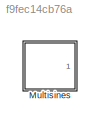
MODEL slx_f9fec14cb76a
KIND model
CONFIG AbsTol = auto
CONFIG FixedStep = auto
CONFIG MaxStep = auto
CONFIG MinStep = auto
CONFIG RelTol = 1e-3
CONFIG SampleTimeConstraint = Unconstrained
CONFIG Solver = ode45
CONFIG SolverMode = Auto
CONFIG SolverName = ode45
CONFIG StartTime = 0.0
CONFIG StopTime = 10.0
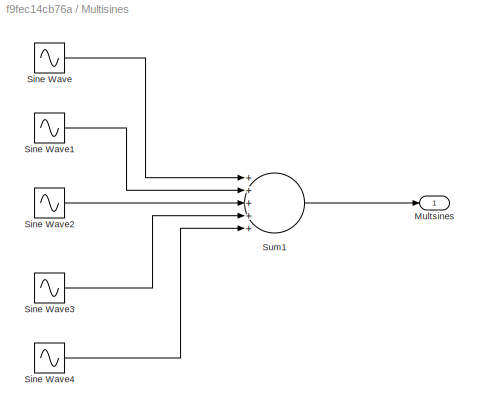
BLOCK [SubSystem] Multisines
  Ports = [0, 1]
  RequestExecContextInheritance = off
BLOCK [Outport] Multisines/Multsines 
  IconDisplay = Port number
BLOCK [Sin] Multisines/Sine Wave
  Ports = [0, 1]
  SampleTime = 0
BLOCK [Sin] Multisines/Sine Wave1
  Frequency = 1.9
  Phase = -2*(2-1)*pi/5
  Ports = [0, 1]
  SampleTime = 0
BLOCK [Sin] Multisines/Sine Wave2
  Frequency = 2.1
  Phase = -3*(3-1)*pi/5
  Ports = [0, 1]
  SampleTime = 0
BLOCK [Sin] Multisines/Sine Wave3
  Frequency = 22
  Phase = -4*(4-1)*pi/5
  Ports = [0, 1]
  SampleTime = 0
BLOCK [Sin] Multisines/Sine Wave4
  Frequency = 18
  Phase = -5*(5-1)*pi/5
  Ports = [0, 1]
  SampleTime = 0
BLOCK [Sum] Multisines/Sum1
  InputSameDT = off
  Inputs = +++++
  OutDataTypeStr = Inherit: Inherit via internal rule
  Ports = [5, 1]
  SaturateOnIntegerOverflow = off
LINE Multisines/Sine Wave1:1 -> Multisines/Sum1:2
LINE Multisines/Sine Wave2:1 -> Multisines/Sum1:3
LINE Multisines/Sine Wave3:1 -> Multisines/Sum1:4
LINE Multisines/Sine Wave4:1 -> Multisines/Sum1:5
LINE Multisines/Sine Wave:1 -> Multisines/Sum1:1
LINE Multisines/Sum1:1 -> Multisines/Multsines :1
